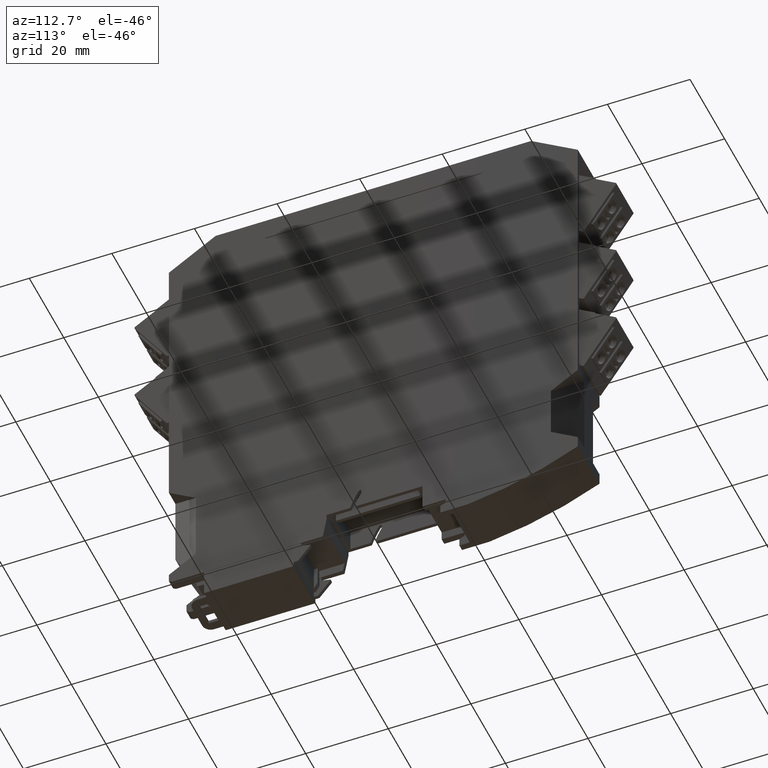
[diagram: clean part render]
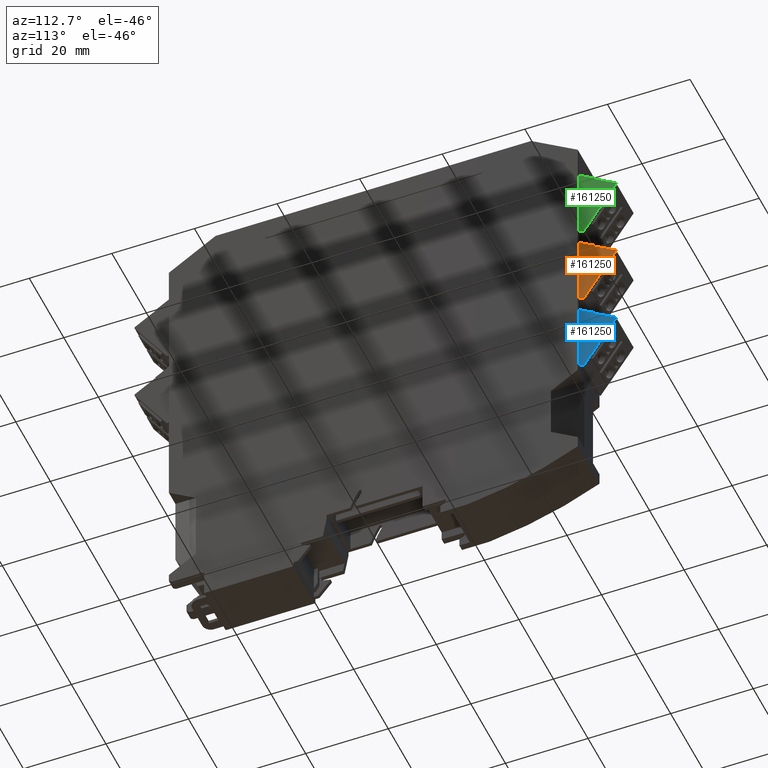
[diagram: same view with three faces highlighted in distinct colors, each labeled with its STEP entity id]
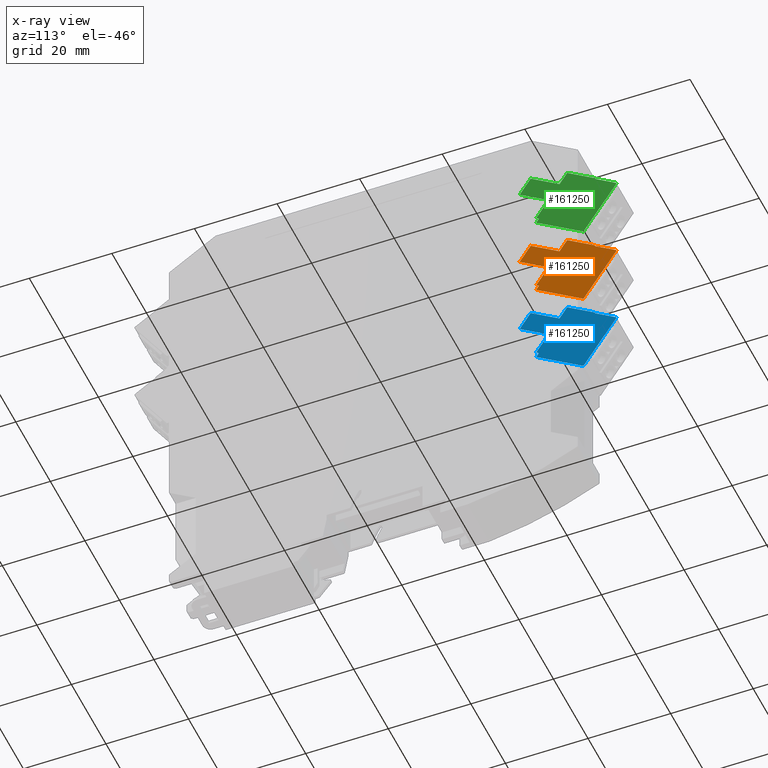
[diagram: x-ray of the same camera — body ghosted, the three highlighted faces saturated]
A machine part, auxiliary view with three faces highlighted in distinct colors.
The next image is the same camera in x-ray (body ghosted, the three faces saturated) — at least one of them is partly hidden behind the body in this view.
Their STEP definitions:

[orange] entity #161250 — the highlighted planar face has unit normal (1, -0, 0).
#160170=CARTESIAN_POINT('',(25.7140685734123,30.5307048378952,
9.97499999999996));
#160180=DIRECTION('',(0.,0.,1.));
#160190=DIRECTION('',(-7.91692437432842E-14,-1.,0.));
#160200=AXIS2_PLACEMENT_3D('',#160170,#160180,#160190);
#160210=PLANE('',#160200);
#160220=CARTESIAN_POINT('',(-7.7804429565731E-13,16.2307048378964,
9.97499999999996));
#160230=DIRECTION('',(1.,-7.46069872548105E-14,0.));
#160240=VECTOR('',#160230,1.);
#160250=LINE('',#160220,#160240);
#160260=CARTESIAN_POINT('',(22.8090821771808,16.2307048378947,
9.97499999999996));
#160270=VERTEX_POINT('',#160260);
#160280=CARTESIAN_POINT('',(36.4640685734126,16.2307048378937,
9.97499999999996));
#160290=VERTEX_POINT('',#160280);
#160300=EDGE_CURVE('',#160270,#160290,#160250,.T.);
#160310=ORIENTED_EDGE('',*,*,#160300,.T.);
#160320=CARTESIAN_POINT('',(22.8090821771796,1.26121335597418E-12,
9.97499999999996));
#160330=DIRECTION('',(-7.46069872548105E-14,-1.,0.));
#160340=VECTOR('',#160330,1.);
#160350=LINE('',#160320,#160340);
#160360=CARTESIAN_POINT('',(22.8090821771809,17.4307048378947,
9.97499999999996));
#160370=VERTEX_POINT('',#160360);
#160380=EDGE_CURVE('',#160370,#160270,#160350,.T.);
#160390=ORIENTED_EDGE('',*,*,#160380,.T.);
#160400=CARTESIAN_POINT('',(-7.7804429565731E-13,19.426240953831,
9.97499999999996));
#160410=DIRECTION('',(0.996194698091739,-0.0871557427477325,0.));
#160420=VECTOR('',#160410,1.);
#160430=LINE('',#160400,#160420);
#160440=CARTESIAN_POINT('',(22.014068573413,17.5002595155734,
9.97499999999996));
#160450=VERTEX_POINT('',#160440);
#160460=EDGE_CURVE('',#160450,#160370,#160430,.T.);
#160470=ORIENTED_EDGE('',*,*,#160460,.T.);
#160480=CARTESIAN_POINT('',(22.014068573413,1.26121335597418E-12,
9.97499999999996));
#160490=DIRECTION('',(0.,-1.,0.));
#160500=VECTOR('',#160490,1.);
#160510=LINE('',#160480,#160500);
#160520=CARTESIAN_POINT('',(22.014068573413,22.9307048378954,
9.97499999999996));
#160530=VERTEX_POINT('',#160520);
#160540=EDGE_CURVE('',#160530,#160450,#160510,.T.);
#160550=ORIENTED_EDGE('',*,*,#160540,.T.);
#160560=CARTESIAN_POINT('',(0.,22.9307048378954,9.97499999999999));
#160570=DIRECTION('',(1.,-1.11892558990331E-45,0.));
#160580=VECTOR('',#160570,1.);
#160590=LINE('',#160560,#160580);
#160600=CARTESIAN_POINT('',(13.6840685734126,22.9307048378954,
9.97499999999996));
#160610=VERTEX_POINT('',#160600);
#160620=EDGE_CURVE('',#160610,#160530,#160590,.T.);
#160630=ORIENTED_EDGE('',*,*,#160620,.T.);
#160640=CARTESIAN_POINT('',(13.6840685734126,0.,9.97499999999999));
#160650=DIRECTION('',(-1.11892558990331E-45,-1.,2.85864886722263E-43));
#160660=VECTOR('',#160650,1.);
#160670=LINE('',#160640,#160660);
#160680=CARTESIAN_POINT('',(13.6840685734126,27.8307048378961,
9.97499999999996));
#160690=VERTEX_POINT('',#160680);
#160700=EDGE_CURVE('',#160690,#160610,#160670,.T.);
#160710=ORIENTED_EDGE('',*,*,#160700,.T.);
#160720=CARTESIAN_POINT('',(0.,27.8307048378961,9.97499999999999));
#160730=DIRECTION('',(1.,-1.11892558990331E-45,0.));
#160740=VECTOR('',#160730,1.);
#160750=LINE('',#160720,#160740);
#160760=CARTESIAN_POINT('',(22.014068573413,27.8307048378961,
9.97499999999996));
#160770=VERTEX_POINT('',#160760);
#160780=EDGE_CURVE('',#160690,#160770,#160750,.T.);
#160790=ORIENTED_EDGE('',*,*,#160780,.F.);
#160800=CARTESIAN_POINT('',(22.014068573413,31.2307048378954,
9.97499999999996));
#160810=VERTEX_POINT('',#160800);
#160820=EDGE_CURVE('',#160810,#160770,#160510,.T.);
#160830=ORIENTED_EDGE('',*,*,#160820,.T.);
#160840=CARTESIAN_POINT('',(-7.7804429565731E-13,31.230704837897,
9.97499999999996));
#160850=DIRECTION('',(-1.,7.46069872548105E-14,0.));
#160860=VECTOR('',#160850,1.);
#160870=LINE('',#160840,#160860);
#160880=CARTESIAN_POINT('',(30.1640685734126,31.2307048378948,
9.97499999999996));
#160890=VERTEX_POINT('',#160880);
#160900=EDGE_CURVE('',#160890,#160810,#160870,.T.);
#160910=ORIENTED_EDGE('',*,*,#160900,.T.);
#160920=CARTESIAN_POINT('',(30.1640685734102,1.26121335597418E-12,
9.97499999999996));
#160930=DIRECTION('',(7.91692437432842E-14,1.,0.));
#160940=VECTOR('',#160930,1.);
#160950=LINE('',#160920,#160940);
#160960=CARTESIAN_POINT('',(30.1640685734126,31.0307048378945,
9.97499999999996));
#160970=VERTEX_POINT('',#160960);
#160980=EDGE_CURVE('',#160970,#160890,#160950,.T.);
#160990=ORIENTED_EDGE('',*,*,#160980,.T.);
#161000=CARTESIAN_POINT('',(-7.7804429565731E-13,31.0307048378945,
9.97499999999996));
#161010=DIRECTION('',(-1.,0.,0.));
#161020=VECTOR('',#161010,1.);
#161030=LINE('',#161000,#161020);
#161040=CARTESIAN_POINT('',(36.1640685734126,31.0307048378945,
9.97499999999996));
#161050=VERTEX_POINT('',#161040);
#161060=EDGE_CURVE('',#161050,#160970,#161030,.T.);
#161070=ORIENTED_EDGE('',*,*,#161060,.T.);
#161080=CARTESIAN_POINT('',(36.1640685734126,30.7307048378945,
9.97499999999996));
#161090=DIRECTION('',(0.,0.,-1.));
#161100=DIRECTION('',(-1.,0.,0.));
#161110=AXIS2_PLACEMENT_3D('',#161080,#161090,#161100);
#161120=CIRCLE('',#161110,0.3);
#161130=CARTESIAN_POINT('',(36.4640685734126,30.7307048378945,
9.97499999999996));
#161140=VERTEX_POINT('',#161130);
#161150=EDGE_CURVE('',#161050,#161140,#161120,.T.);
#161160=ORIENTED_EDGE('',*,*,#161150,.F.);
#161170=CARTESIAN_POINT('',(36.4640685734126,1.26121335597418E-12,
9.97499999999996));
#161180=DIRECTION('',(0.,1.,0.));
#161190=VECTOR('',#161180,1.);
#161200=LINE('',#161170,#161190);
#161210=EDGE_CURVE('',#160290,#161140,#161200,.T.);
#161220=ORIENTED_EDGE('',*,*,#161210,.T.);
#161230=EDGE_LOOP('',(#161220,#161160,#161070,#160990,#160910,#160830,
#160790,#160710,#160630,#160550,#160470,#160390,#160310));
#161240=FACE_OUTER_BOUND('',#161230,.T.);
#161250=ADVANCED_FACE('',(#161240),#160210,.T.);

[blue] entity #161250 — the highlighted planar face has unit normal (1, -0, 0).
#160170=CARTESIAN_POINT('',(25.7140685734123,30.5307048378952,
9.97499999999996));
#160180=DIRECTION('',(0.,0.,1.));
#160190=DIRECTION('',(-7.91692437432842E-14,-1.,0.));
#160200=AXIS2_PLACEMENT_3D('',#160170,#160180,#160190);
#160210=PLANE('',#160200);
#160220=CARTESIAN_POINT('',(-7.7804429565731E-13,16.2307048378964,
9.97499999999996));
#160230=DIRECTION('',(1.,-7.46069872548105E-14,0.));
#160240=VECTOR('',#160230,1.);
#160250=LINE('',#160220,#160240);
#160260=CARTESIAN_POINT('',(22.8090821771808,16.2307048378947,
9.97499999999996));
#160270=VERTEX_POINT('',#160260);
#160280=CARTESIAN_POINT('',(36.4640685734126,16.2307048378937,
9.97499999999996));
#160290=VERTEX_POINT('',#160280);
#160300=EDGE_CURVE('',#160270,#160290,#160250,.T.);
#160310=ORIENTED_EDGE('',*,*,#160300,.T.);
#160320=CARTESIAN_POINT('',(22.8090821771796,1.26121335597418E-12,
9.97499999999996));
#160330=DIRECTION('',(-7.46069872548105E-14,-1.,0.));
#160340=VECTOR('',#160330,1.);
#160350=LINE('',#160320,#160340);
#160360=CARTESIAN_POINT('',(22.8090821771809,17.4307048378947,
9.97499999999996));
#160370=VERTEX_POINT('',#160360);
#160380=EDGE_CURVE('',#160370,#160270,#160350,.T.);
#160390=ORIENTED_EDGE('',*,*,#160380,.T.);
#160400=CARTESIAN_POINT('',(-7.7804429565731E-13,19.426240953831,
9.97499999999996));
#160410=DIRECTION('',(0.996194698091739,-0.0871557427477325,0.));
#160420=VECTOR('',#160410,1.);
#160430=LINE('',#160400,#160420);
#160440=CARTESIAN_POINT('',(22.014068573413,17.5002595155734,
9.97499999999996));
#160450=VERTEX_POINT('',#160440);
#160460=EDGE_CURVE('',#160450,#160370,#160430,.T.);
#160470=ORIENTED_EDGE('',*,*,#160460,.T.);
#160480=CARTESIAN_POINT('',(22.014068573413,1.26121335597418E-12,
9.97499999999996));
#160490=DIRECTION('',(0.,-1.,0.));
#160500=VECTOR('',#160490,1.);
#160510=LINE('',#160480,#160500);
#160520=CARTESIAN_POINT('',(22.014068573413,22.9307048378954,
9.97499999999996));
#160530=VERTEX_POINT('',#160520);
#160540=EDGE_CURVE('',#160530,#160450,#160510,.T.);
#160550=ORIENTED_EDGE('',*,*,#160540,.T.);
#160560=CARTESIAN_POINT('',(0.,22.9307048378954,9.97499999999999));
#160570=DIRECTION('',(1.,-1.11892558990331E-45,0.));
#160580=VECTOR('',#160570,1.);
#160590=LINE('',#160560,#160580);
#160600=CARTESIAN_POINT('',(13.6840685734126,22.9307048378954,
9.97499999999996));
#160610=VERTEX_POINT('',#160600);
#160620=EDGE_CURVE('',#160610,#160530,#160590,.T.);
#160630=ORIENTED_EDGE('',*,*,#160620,.T.);
#160640=CARTESIAN_POINT('',(13.6840685734126,0.,9.97499999999999));
#160650=DIRECTION('',(-1.11892558990331E-45,-1.,2.85864886722263E-43));
#160660=VECTOR('',#160650,1.);
#160670=LINE('',#160640,#160660);
#160680=CARTESIAN_POINT('',(13.6840685734126,27.8307048378961,
9.97499999999996));
#160690=VERTEX_POINT('',#160680);
#160700=EDGE_CURVE('',#160690,#160610,#160670,.T.);
#160710=ORIENTED_EDGE('',*,*,#160700,.T.);
#160720=CARTESIAN_POINT('',(0.,27.8307048378961,9.97499999999999));
#160730=DIRECTION('',(1.,-1.11892558990331E-45,0.));
#160740=VECTOR('',#160730,1.);
#160750=LINE('',#160720,#160740);
#160760=CARTESIAN_POINT('',(22.014068573413,27.8307048378961,
9.97499999999996));
#160770=VERTEX_POINT('',#160760);
#160780=EDGE_CURVE('',#160690,#160770,#160750,.T.);
#160790=ORIENTED_EDGE('',*,*,#160780,.F.);
#160800=CARTESIAN_POINT('',(22.014068573413,31.2307048378954,
9.97499999999996));
#160810=VERTEX_POINT('',#160800);
#160820=EDGE_CURVE('',#160810,#160770,#160510,.T.);
#160830=ORIENTED_EDGE('',*,*,#160820,.T.);
#160840=CARTESIAN_POINT('',(-7.7804429565731E-13,31.230704837897,
9.97499999999996));
#160850=DIRECTION('',(-1.,7.46069872548105E-14,0.));
#160860=VECTOR('',#160850,1.);
#160870=LINE('',#160840,#160860);
#160880=CARTESIAN_POINT('',(30.1640685734126,31.2307048378948,
9.97499999999996));
#160890=VERTEX_POINT('',#160880);
#160900=EDGE_CURVE('',#160890,#160810,#160870,.T.);
#160910=ORIENTED_EDGE('',*,*,#160900,.T.);
#160920=CARTESIAN_POINT('',(30.1640685734102,1.26121335597418E-12,
9.97499999999996));
#160930=DIRECTION('',(7.91692437432842E-14,1.,0.));
#160940=VECTOR('',#160930,1.);
#160950=LINE('',#160920,#160940);
#160960=CARTESIAN_POINT('',(30.1640685734126,31.0307048378945,
9.97499999999996));
#160970=VERTEX_POINT('',#160960);
#160980=EDGE_CURVE('',#160970,#160890,#160950,.T.);
#160990=ORIENTED_EDGE('',*,*,#160980,.T.);
#161000=CARTESIAN_POINT('',(-7.7804429565731E-13,31.0307048378945,
9.97499999999996));
#161010=DIRECTION('',(-1.,0.,0.));
#161020=VECTOR('',#161010,1.);
#161030=LINE('',#161000,#161020);
#161040=CARTESIAN_POINT('',(36.1640685734126,31.0307048378945,
9.97499999999996));
#161050=VERTEX_POINT('',#161040);
#161060=EDGE_CURVE('',#161050,#160970,#161030,.T.);
#161070=ORIENTED_EDGE('',*,*,#161060,.T.);
#161080=CARTESIAN_POINT('',(36.1640685734126,30.7307048378945,
9.97499999999996));
#161090=DIRECTION('',(0.,0.,-1.));
#161100=DIRECTION('',(-1.,0.,0.));
#161110=AXIS2_PLACEMENT_3D('',#161080,#161090,#161100);
#161120=CIRCLE('',#161110,0.3);
#161130=CARTESIAN_POINT('',(36.4640685734126,30.7307048378945,
9.97499999999996));
#161140=VERTEX_POINT('',#161130);
#161150=EDGE_CURVE('',#161050,#161140,#161120,.T.);
#161160=ORIENTED_EDGE('',*,*,#161150,.F.);
#161170=CARTESIAN_POINT('',(36.4640685734126,1.26121335597418E-12,
9.97499999999996));
#161180=DIRECTION('',(0.,1.,0.));
#161190=VECTOR('',#161180,1.);
#161200=LINE('',#161170,#161190);
#161210=EDGE_CURVE('',#160290,#161140,#161200,.T.);
#161220=ORIENTED_EDGE('',*,*,#161210,.T.);
#161230=EDGE_LOOP('',(#161220,#161160,#161070,#160990,#160910,#160830,
#160790,#160710,#160630,#160550,#160470,#160390,#160310));
#161240=FACE_OUTER_BOUND('',#161230,.T.);
#161250=ADVANCED_FACE('',(#161240),#160210,.T.);

[green] entity #161250 — the highlighted planar face has unit normal (1, -0, 0).
#160170=CARTESIAN_POINT('',(25.7140685734123,30.5307048378952,
9.97499999999996));
#160180=DIRECTION('',(0.,0.,1.));
#160190=DIRECTION('',(-7.91692437432842E-14,-1.,0.));
#160200=AXIS2_PLACEMENT_3D('',#160170,#160180,#160190);
#160210=PLANE('',#160200);
#160220=CARTESIAN_POINT('',(-7.7804429565731E-13,16.2307048378964,
9.97499999999996));
#160230=DIRECTION('',(1.,-7.46069872548105E-14,0.));
#160240=VECTOR('',#160230,1.);
#160250=LINE('',#160220,#160240);
#160260=CARTESIAN_POINT('',(22.8090821771808,16.2307048378947,
9.97499999999996));
#160270=VERTEX_POINT('',#160260);
#160280=CARTESIAN_POINT('',(36.4640685734126,16.2307048378937,
9.97499999999996));
#160290=VERTEX_POINT('',#160280);
#160300=EDGE_CURVE('',#160270,#160290,#160250,.T.);
#160310=ORIENTED_EDGE('',*,*,#160300,.T.);
#160320=CARTESIAN_POINT('',(22.8090821771796,1.26121335597418E-12,
9.97499999999996));
#160330=DIRECTION('',(-7.46069872548105E-14,-1.,0.));
#160340=VECTOR('',#160330,1.);
#160350=LINE('',#160320,#160340);
#160360=CARTESIAN_POINT('',(22.8090821771809,17.4307048378947,
9.97499999999996));
#160370=VERTEX_POINT('',#160360);
#160380=EDGE_CURVE('',#160370,#160270,#160350,.T.);
#160390=ORIENTED_EDGE('',*,*,#160380,.T.);
#160400=CARTESIAN_POINT('',(-7.7804429565731E-13,19.426240953831,
9.97499999999996));
#160410=DIRECTION('',(0.996194698091739,-0.0871557427477325,0.));
#160420=VECTOR('',#160410,1.);
#160430=LINE('',#160400,#160420);
#160440=CARTESIAN_POINT('',(22.014068573413,17.5002595155734,
9.97499999999996));
#160450=VERTEX_POINT('',#160440);
#160460=EDGE_CURVE('',#160450,#160370,#160430,.T.);
#160470=ORIENTED_EDGE('',*,*,#160460,.T.);
#160480=CARTESIAN_POINT('',(22.014068573413,1.26121335597418E-12,
9.97499999999996));
#160490=DIRECTION('',(0.,-1.,0.));
#160500=VECTOR('',#160490,1.);
#160510=LINE('',#160480,#160500);
#160520=CARTESIAN_POINT('',(22.014068573413,22.9307048378954,
9.97499999999996));
#160530=VERTEX_POINT('',#160520);
#160540=EDGE_CURVE('',#160530,#160450,#160510,.T.);
#160550=ORIENTED_EDGE('',*,*,#160540,.T.);
#160560=CARTESIAN_POINT('',(0.,22.9307048378954,9.97499999999999));
#160570=DIRECTION('',(1.,-1.11892558990331E-45,0.));
#160580=VECTOR('',#160570,1.);
#160590=LINE('',#160560,#160580);
#160600=CARTESIAN_POINT('',(13.6840685734126,22.9307048378954,
9.97499999999996));
#160610=VERTEX_POINT('',#160600);
#160620=EDGE_CURVE('',#160610,#160530,#160590,.T.);
#160630=ORIENTED_EDGE('',*,*,#160620,.T.);
#160640=CARTESIAN_POINT('',(13.6840685734126,0.,9.97499999999999));
#160650=DIRECTION('',(-1.11892558990331E-45,-1.,2.85864886722263E-43));
#160660=VECTOR('',#160650,1.);
#160670=LINE('',#160640,#160660);
#160680=CARTESIAN_POINT('',(13.6840685734126,27.8307048378961,
9.97499999999996));
#160690=VERTEX_POINT('',#160680);
#160700=EDGE_CURVE('',#160690,#160610,#160670,.T.);
#160710=ORIENTED_EDGE('',*,*,#160700,.T.);
#160720=CARTESIAN_POINT('',(0.,27.8307048378961,9.97499999999999));
#160730=DIRECTION('',(1.,-1.11892558990331E-45,0.));
#160740=VECTOR('',#160730,1.);
#160750=LINE('',#160720,#160740);
#160760=CARTESIAN_POINT('',(22.014068573413,27.8307048378961,
9.97499999999996));
#160770=VERTEX_POINT('',#160760);
#160780=EDGE_CURVE('',#160690,#160770,#160750,.T.);
#160790=ORIENTED_EDGE('',*,*,#160780,.F.);
#160800=CARTESIAN_POINT('',(22.014068573413,31.2307048378954,
9.97499999999996));
#160810=VERTEX_POINT('',#160800);
#160820=EDGE_CURVE('',#160810,#160770,#160510,.T.);
#160830=ORIENTED_EDGE('',*,*,#160820,.T.);
#160840=CARTESIAN_POINT('',(-7.7804429565731E-13,31.230704837897,
9.97499999999996));
#160850=DIRECTION('',(-1.,7.46069872548105E-14,0.));
#160860=VECTOR('',#160850,1.);
#160870=LINE('',#160840,#160860);
#160880=CARTESIAN_POINT('',(30.1640685734126,31.2307048378948,
9.97499999999996));
#160890=VERTEX_POINT('',#160880);
#160900=EDGE_CURVE('',#160890,#160810,#160870,.T.);
#160910=ORIENTED_EDGE('',*,*,#160900,.T.);
#160920=CARTESIAN_POINT('',(30.1640685734102,1.26121335597418E-12,
9.97499999999996));
#160930=DIRECTION('',(7.91692437432842E-14,1.,0.));
#160940=VECTOR('',#160930,1.);
#160950=LINE('',#160920,#160940);
#160960=CARTESIAN_POINT('',(30.1640685734126,31.0307048378945,
9.97499999999996));
#160970=VERTEX_POINT('',#160960);
#160980=EDGE_CURVE('',#160970,#160890,#160950,.T.);
#160990=ORIENTED_EDGE('',*,*,#160980,.T.);
#161000=CARTESIAN_POINT('',(-7.7804429565731E-13,31.0307048378945,
9.97499999999996));
#161010=DIRECTION('',(-1.,0.,0.));
#161020=VECTOR('',#161010,1.);
#161030=LINE('',#161000,#161020);
#161040=CARTESIAN_POINT('',(36.1640685734126,31.0307048378945,
9.97499999999996));
#161050=VERTEX_POINT('',#161040);
#161060=EDGE_CURVE('',#161050,#160970,#161030,.T.);
#161070=ORIENTED_EDGE('',*,*,#161060,.T.);
#161080=CARTESIAN_POINT('',(36.1640685734126,30.7307048378945,
9.97499999999996));
#161090=DIRECTION('',(0.,0.,-1.));
#161100=DIRECTION('',(-1.,0.,0.));
#161110=AXIS2_PLACEMENT_3D('',#161080,#161090,#161100);
#161120=CIRCLE('',#161110,0.3);
#161130=CARTESIAN_POINT('',(36.4640685734126,30.7307048378945,
9.97499999999996));
#161140=VERTEX_POINT('',#161130);
#161150=EDGE_CURVE('',#161050,#161140,#161120,.T.);
#161160=ORIENTED_EDGE('',*,*,#161150,.F.);
#161170=CARTESIAN_POINT('',(36.4640685734126,1.26121335597418E-12,
9.97499999999996));
#161180=DIRECTION('',(0.,1.,0.));
#161190=VECTOR('',#161180,1.);
#161200=LINE('',#161170,#161190);
#161210=EDGE_CURVE('',#160290,#161140,#161200,.T.);
#161220=ORIENTED_EDGE('',*,*,#161210,.T.);
#161230=EDGE_LOOP('',(#161220,#161160,#161070,#160990,#160910,#160830,
#160790,#160710,#160630,#160550,#160470,#160390,#160310));
#161240=FACE_OUTER_BOUND('',#161230,.T.);
#161250=ADVANCED_FACE('',(#161240),#160210,.T.);